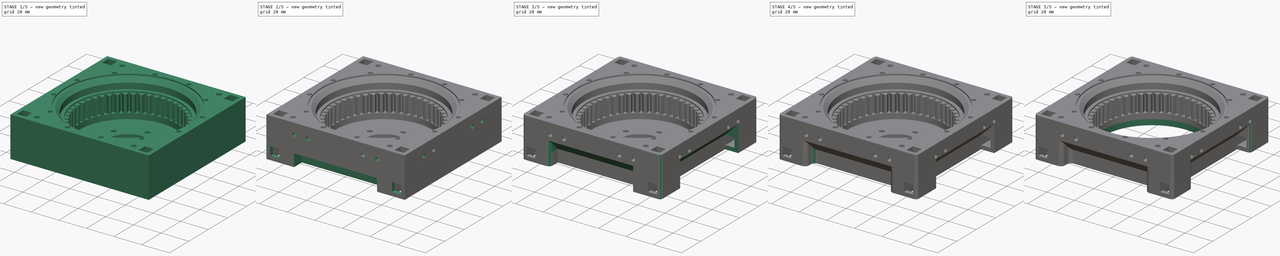
[diagram: build sequence overview — one tinted view per stage of 5, left to right]
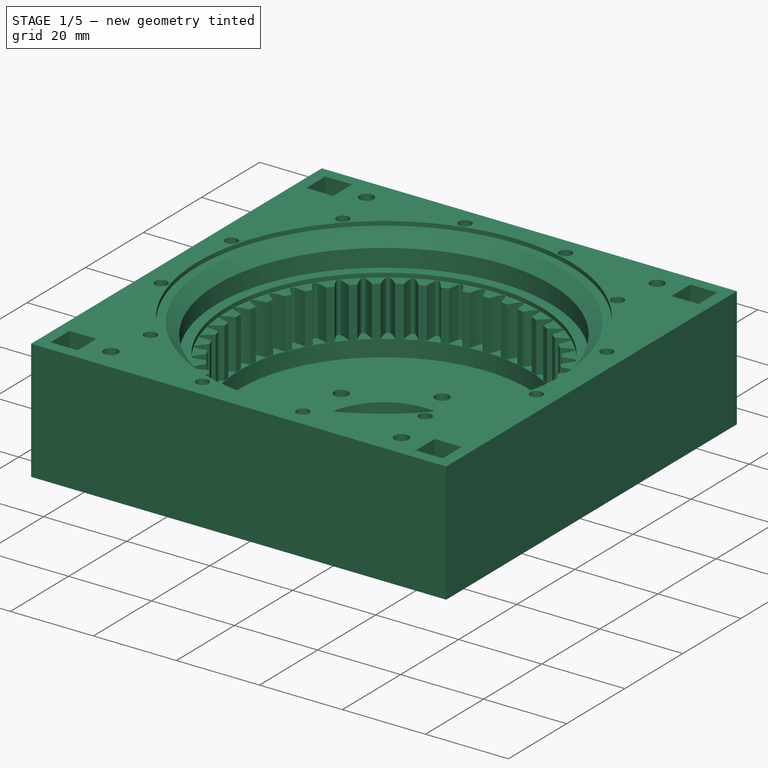
[diagram: stage 1 of 5 — iso view after this stage's code; geometry added in this stage tinted green]
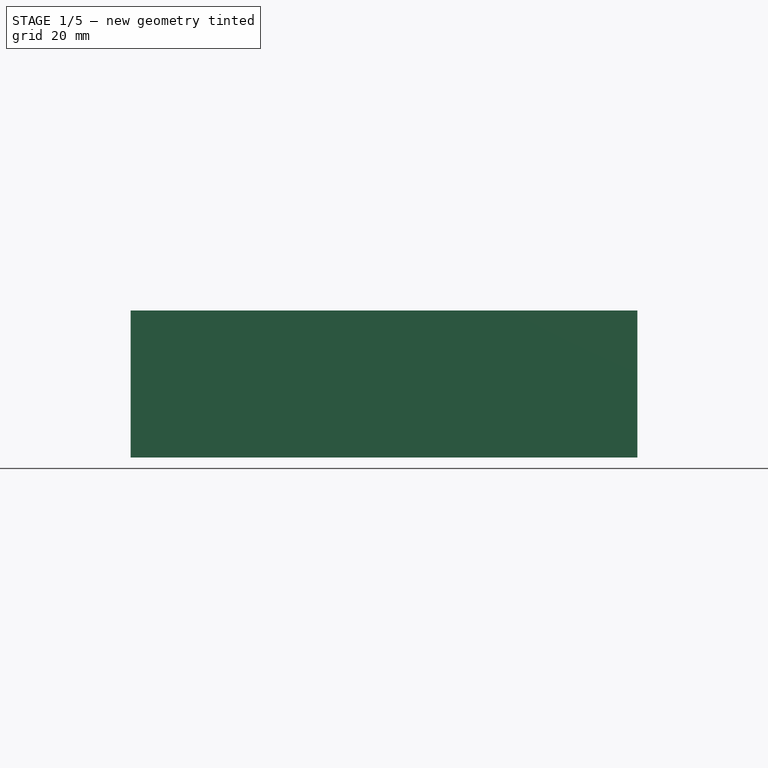
[diagram: stage 1 of 5 — front view after this stage's code; geometry added in this stage tinted green]
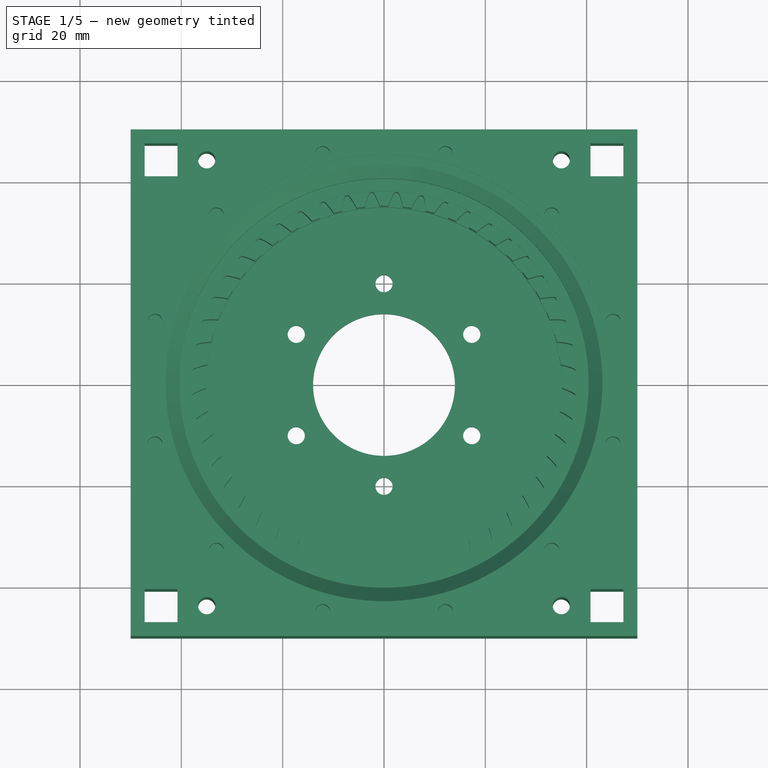
[diagram: stage 1 of 5 — top view after this stage's code; geometry added in this stage tinted green]
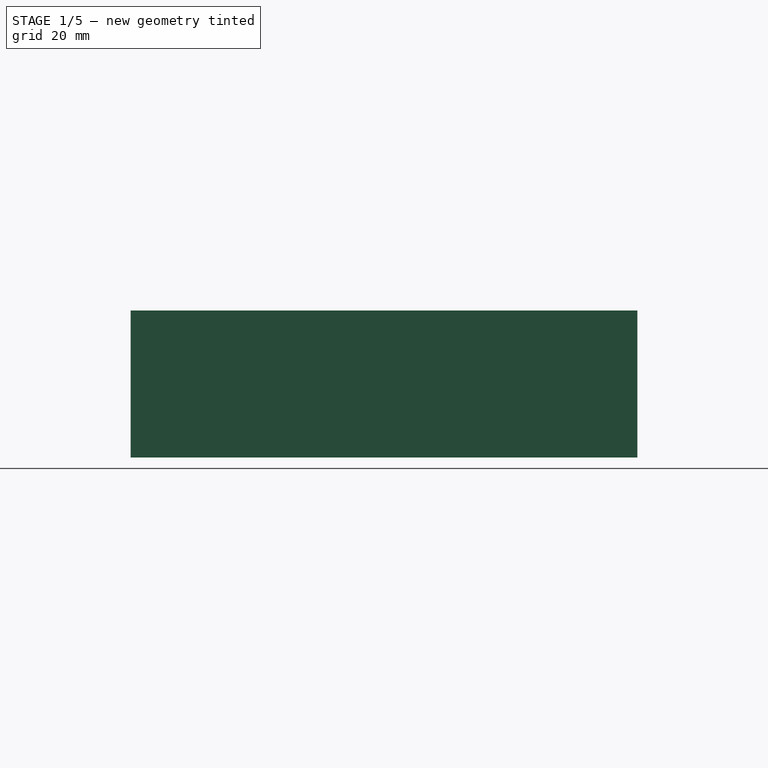
[diagram: stage 1 of 5 — right view after this stage's code; geometry added in this stage tinted green]
FCSTD DOCUMENT  (FreeCAD 0.16R6706 (Git))
Label: RingFixedV1_5
License: All rights reserved
LicenseURL: http://en.wikipedia.org/wiki/All_rights_reserved
objects: PartDesign::Fillet×16, Sketcher::SketchObject×15, PartDesign::Pocket×13, PartDesign::Chamfer×10, PartDesign::Pad×2, PartDesign::PolarPattern×2, PartDesign::Revolution×1, Part::Part2DObjectPython×1, Part::Cut×1, Part::Fuse×1
note: 78 computed .brp shape members not serialized (recipe doc carries the construction recipe); baked Part::Feature solids carry a one-line shape summary decoded from their .brp

FEATURE [Sketcher::SketchObject] Sketch013
  Placement = pos=(0,0,0) rot=(1,0,0;1.5708rad)
  sketch-geometry (25):
    g0: LineSegment StartX=14 StartY=0 StartZ=0 EndX=14 EndY=4 EndZ=0
    g1: LineSegment StartX=14 StartY=0 StartZ=0 EndX=45 EndY=0 EndZ=0
    g2: LineSegment StartX=14 StartY=4 StartZ=0 EndX=35 EndY=4 EndZ=0
    g3: LineSegment StartX=35 StartY=4 StartZ=0 EndX=35 EndY=20 EndZ=0
    g4: LineSegment StartX=45 StartY=0 StartZ=0 EndX=45 EndY=5.26261 EndZ=0
    g5: LineSegment StartX=35 StartY=20 StartZ=0 EndX=38 EndY=20 EndZ=0
    g6: LineSegment StartX=38 StartY=20 StartZ=0 EndX=38 EndY=21 EndZ=0
    g7: LineSegment StartX=38 StartY=21 StartZ=0 EndX=40.4 EndY=21 EndZ=0
    g8: LineSegment StartX=45 StartY=5.26261 StartZ=0 EndX=50 EndY=19 EndZ=0
    g9: LineSegment StartX=40.4 StartY=21 StartZ=0 EndX=40.4 EndY=25.2988 EndZ=0
    g10: LineSegment StartX=40.4 StartY=25.2988 StartZ=0 EndX=43.1012 EndY=28 EndZ=0
    g11: LineSegment StartX=45 StartY=29 StartZ=0 EndX=50 EndY=29 EndZ=0
    g12: LineSegment StartX=50 StartY=29 StartZ=0 EndX=50 EndY=19 EndZ=0
    g13: LineSegment StartX=43.1012 StartY=28 StartZ=0 EndX=45 EndY=28 EndZ=0
    g14: LineSegment StartX=45 StartY=28 StartZ=0 EndX=45 EndY=29 EndZ=0
    g15: Circle [constr] CenterX=40 CenterY=29 CenterZ=0 NormalX=0 NormalY=0 NormalZ=1 Radius=2.9
    g16: LineSegment [constr] StartX=40 StartY=29 StartZ=0 EndX=45 EndY=29 EndZ=0
    g17: Circle CenterX=44.1719 CenterY=24.8281 CenterZ=0 NormalX=0 NormalY=0 NormalZ=1 Radius=0.2
    g18: LineSegment [constr] StartX=42.0506 StartY=26.9494 StartZ=0 EndX=44.1719 EndY=24.8281 EndZ=0
    g19: Circle CenterX=39.5 CenterY=18 CenterZ=0 NormalX=0 NormalY=0 NormalZ=1 Radius=0.15
    g20: Circle CenterX=39.5 CenterY=16 CenterZ=0 NormalX=0 NormalY=0 NormalZ=1 Radius=0.15
    g21: Circle CenterX=39.5 CenterY=14 CenterZ=0 NormalX=0 NormalY=0 NormalZ=1 Radius=0.15
    g22: LineSegment [constr] StartX=39.5 StartY=21 StartZ=0 EndX=39.5 EndY=0 EndZ=0
    g23: Circle CenterX=39.5 CenterY=12 CenterZ=0 NormalX=0 NormalY=0 NormalZ=1 Radius=0.15
    g24: Circle CenterX=39.5 CenterY=10 CenterZ=0 NormalX=0 NormalY=0 NormalZ=1 Radius=0.15
  constraints (78):
    c: PointOnObject(g0,g-1)
    c: Vertical(g0)
    c: DistanceX(g-1,g0) = 14
    c: Coincident(g1,g0)
    c: Horizontal(g1)
    c: DistanceX(g-1,g1) = 45
    c: DistanceY(g0,g0) = -4
    c: Horizontal(g2)
    c: Coincident(g3,g2)
    c: Vertical(g3)
    c: Coincident(g2,g0)
    c: Coincident(g4,g1)
    c: Vertical(g4)
    c: Coincident(g5,g3)
    c: Horizontal(g5)
    c: Coincident(g6,g5)
    c: Vertical(g6)
    c: Coincident(g7,g6)
    c: Horizontal(g7)
    c: Coincident(g8,g4)
    c: Angle(g4,g8) = 2.79253
    c: DistanceX(g-1,g2) = 35
    c: DistanceY(g6,g2) = -17
    c: DistanceY(g5,g6) = 1
    c: DistanceX(g-1,g8) = 50
    c: DistanceX(g-1,g5) = 38
    c: Coincident(g7,g9)
    c: Vertical(g9)
    c: Coincident(g9,g10)
    c: Horizontal(g11)
    c: Coincident(g12,g11)
    c: Coincident(g12,g8)
    c: Vertical(g12)
    c: Coincident(g10,g13)
    c: Coincident(g13,g14)
    c: Coincident(g11,g14)
    c: Vertical(g14)
    c: Horizontal(g13)
    c: Radius(g15) = 2.9
    c: Tangent(g10,g15)
    c: Coincident(g16,g15)
    c: Horizontal(g16)
    c: Angle(g10,g16) = 2.35619
    c: DistanceX(g15,g9) = 0.4
    c: DistanceY(g10,g15) = 1
    c: Coincident(g11,g16)
    c: DistanceX(g-1,g13) = 45
    c: DistanceX(g-1,g15) = 40
    c: DistanceY(g6,g15) = 8
    c: DistanceY(g8,g11) = 10
    c: DistanceX(g11,g11) = 5
    c: DistanceX(g10,g13) = 1.89878
    c: DistanceY(g1,g11) = 29
    c: Radius(g17) = 0.2
    c: PointOnObject(g18,g15)
    c: PointOnObject(g18,g10)
    c: Angle(g10,g18) = 1.5708
    c: Coincident(g17,g18)
    c: Distance(g18,g17) = 3
    c: Vertical(g22)
    c: PointOnObject(g19,g22)
    c: PointOnObject(g20,g22)
    c: PointOnObject(g21,g22)
    c: Radius(g19) = 0.15
    c: Equal(g19,g20)
    c: Equal(g19,g21)
    c: PointOnObject(g22,g1)
    c: DistanceY(g19,g5) = 2
    c: DistanceY(g20,g19) = 2
    c: DistanceY(g21,g20) = 2
    c: PointOnObject(g22,g7)
    c: DistanceX(g5,g22) = 1.5
    c: PointOnObject(g23,g22)
    c: PointOnObject(g24,g22)
    c: Radius(g23) = 0.15
    c: Radius(g24) = 0.15
    c: DistanceY(g23,g21) = 2
    c: DistanceY(g24,g23) = 2
FEATURE [PartDesign::Revolution] Revolution
  Angle = 360
  Axis = (0,0,1)
  Base = (0,0,0)
  Placement = pos=(0,0,0) rot=(1,0,0;1.5708rad)
  ReferenceAxis = -> Sketch013 [V_Axis]
  Reversed = true
  Sketch = -> Sketch013
FEATURE [Part::Part2DObjectPython] InvoluteGear003  # Draft 2D object (typed FeaturePython)
  ExternalGear = true
  HighPrecision = true
  Modules = 1.5
  NumberOfTeeth = 18
  PressureAngle = 20
FEATURE [PartDesign::Pad] Pad007
  Length = 15
  Length2 = 10
  Placement = pos=(0,0,8) rot=(0,0,1;0rad)
  Sketch = -> InvoluteGear003
  Type = 0
FEATURE [Part::Cut] Cut
  Base = -> Revolution
  Tool = -> Pad007
FEATURE [Sketcher::SketchObject] Sketch014
  Placement = pos=(0,0,0) rot=(1,0,0;3.14159rad)
  Support = -> Cut [Face2]
  sketch-geometry (2):
    g0: Circle CenterX=0 CenterY=-20 CenterZ=0 NormalX=0 NormalY=0 NormalZ=1 Radius=1.7
    g1: Circle [constr] CenterX=0 CenterY=0 CenterZ=0 NormalX=0 NormalY=0 NormalZ=1 Radius=20
  constraints (5):
    c: Radius(g0) = 1.7
    c: Radius(g1) = 20
    c: Coincident(g1,g-1)
    c: PointOnObject(g0,g1)
    c: PointOnObject(g0,g-2)
FEATURE [PartDesign::Pocket] Pocket008
  Length = 5
  Sketch = -> Sketch014
  Type = 1
FEATURE [Sketcher::SketchObject] Sketch022  label="HorizontalMountPlane"
  sketch-geometry (48):
    g0: LineSegment StartX=-50 StartY=50 StartZ=0 EndX=50 EndY=50 EndZ=0
    g1: LineSegment StartX=50 StartY=50 StartZ=0 EndX=50 EndY=-50 EndZ=0
    g2: LineSegment StartX=50 StartY=-50 StartZ=0 EndX=-50 EndY=-50 EndZ=0
    g3: LineSegment StartX=-50 StartY=-50 StartZ=0 EndX=-50 EndY=50 EndZ=0
    g4: Circle CenterX=0 CenterY=0 CenterZ=0 NormalX=0 NormalY=0 NormalZ=1 Radius=44
    g5: LineSegment [constr] StartX=-44 StartY=44 StartZ=0 EndX=44 EndY=44 EndZ=0
    g6: LineSegment [constr] StartX=44 StartY=44 StartZ=0 EndX=44 EndY=-44 EndZ=0
    g7: LineSegment [constr] StartX=44 StartY=-44 StartZ=0 EndX=-44 EndY=-44 EndZ=0
    g8: LineSegment [constr] StartX=-44 StartY=-44 StartZ=0 EndX=-44 EndY=44 EndZ=0
    g9: LineSegment StartX=-47.25 StartY=47.25 StartZ=0 EndX=-40.75 EndY=47.25 EndZ=0
    g10: LineSegment StartX=-40.75 StartY=47.25 StartZ=0 EndX=-40.75 EndY=40.75 EndZ=0
    g11: LineSegment StartX=-40.75 StartY=40.75 StartZ=0 EndX=-47.25 EndY=40.75 EndZ=0
    g12: LineSegment StartX=-47.25 StartY=40.75 StartZ=0 EndX=-47.25 EndY=47.25 EndZ=0
    g13: LineSegment StartX=40.75 StartY=47.25 StartZ=0 EndX=47.25 EndY=47.25 EndZ=0
    g14: LineSegment StartX=47.25 StartY=47.25 StartZ=0 EndX=47.25 EndY=40.75 EndZ=0
    g15: LineSegment StartX=47.25 StartY=40.75 StartZ=0 EndX=40.75 EndY=40.75 EndZ=0
    g16: LineSegment StartX=40.75 StartY=40.75 StartZ=0 EndX=40.75 EndY=47.25 EndZ=0
    g17: LineSegment StartX=-47.25 StartY=-40.75 StartZ=0 EndX=-40.75 EndY=-40.75 EndZ=0
    g18: LineSegment StartX=-40.75 StartY=-40.75 StartZ=0 EndX=-40.75 EndY=-47.25 EndZ=0
    g19: LineSegment StartX=-40.75 StartY=-47.25 StartZ=0 EndX=-47.25 EndY=-47.25 EndZ=0
    g20: LineSegment StartX=-47.25 StartY=-47.25 StartZ=0 EndX=-47.25 EndY=-40.75 EndZ=0
    g21: LineSegment StartX=40.75 StartY=-40.75 StartZ=0 EndX=47.25 EndY=-40.75 EndZ=0
    g22: LineSegment StartX=47.25 StartY=-40.75 StartZ=0 EndX=47.25 EndY=-47.25 EndZ=0
    g23: LineSegment StartX=47.25 StartY=-47.25 StartZ=0 EndX=40.75 EndY=-47.25 EndZ=0
    g24: LineSegment StartX=40.75 StartY=-47.25 StartZ=0 EndX=40.75 EndY=-40.75 EndZ=0
    g25: LineSegment [constr] StartX=-47.25 StartY=40.75 StartZ=0 EndX=-47.25 EndY=-40.75 EndZ=0
    g26: LineSegment [constr] StartX=-40.75 StartY=47.25 StartZ=0 EndX=40.75 EndY=47.25 EndZ=0
    g27: LineSegment [constr] StartX=47.25 StartY=40.75 StartZ=0 EndX=47.25 EndY=-40.75 EndZ=0
    g28: Circle CenterX=-35 CenterY=44 CenterZ=0 NormalX=0 NormalY=0 NormalZ=1 Radius=1.7
    g29: Circle [constr] CenterX=-44 CenterY=35 CenterZ=0 NormalX=0 NormalY=0 NormalZ=1 Radius=1.7
    g30: Circle [constr] CenterX=-44 CenterY=-35 CenterZ=0 NormalX=0 NormalY=0 NormalZ=1 Radius=1.7
    g31: Circle CenterX=-35 CenterY=-44 CenterZ=0 NormalX=0 NormalY=0 NormalZ=1 Radius=1.7
    g32: Circle CenterX=35 CenterY=-44 CenterZ=0 NormalX=0 NormalY=0 NormalZ=1 Radius=1.7
    g33: Circle [constr] CenterX=44 CenterY=-35 CenterZ=0 NormalX=0 NormalY=0 NormalZ=1 Radius=1.7
    g34: Circle [constr] CenterX=44 CenterY=35 CenterZ=0 NormalX=0 NormalY=0 NormalZ=1 Radius=1.7
    g35: Circle CenterX=35 CenterY=44 CenterZ=0 NormalX=0 NormalY=0 NormalZ=1 Radius=1.7
    g36: LineSegment [constr] StartX=-44 StartY=35 StartZ=0 EndX=44 EndY=35 EndZ=0
    g37: LineSegment [constr] StartX=-35 StartY=44 StartZ=0 EndX=-35 EndY=-44 EndZ=0
    g38: LineSegment [constr] StartX=-44 StartY=-35 StartZ=0 EndX=44 EndY=-35 EndZ=0
    g39: LineSegment [constr] StartX=35 StartY=-44 StartZ=0 EndX=35 EndY=44 EndZ=0
    g40: LineSegment [constr] StartX=-36.5 StartY=36.5 StartZ=0 EndX=36.5 EndY=36.5 EndZ=0
    g41: LineSegment [constr] StartX=36.5 StartY=36.5 StartZ=0 EndX=36.5 EndY=-36.5 EndZ=0
    g42: LineSegment [constr] StartX=36.5 StartY=-36.5 StartZ=0 EndX=-36.5 EndY=-36.5 EndZ=0
    g43: LineSegment [constr] StartX=-36.5 StartY=-36.5 StartZ=0 EndX=-36.5 EndY=36.5 EndZ=0
    g44: Circle [constr] CenterX=-36.5 CenterY=36.5 CenterZ=0 NormalX=0 NormalY=0 NormalZ=1 Radius=1.7
    g45: Circle [constr] CenterX=36.5 CenterY=36.5 CenterZ=0 NormalX=0 NormalY=0 NormalZ=1 Radius=1.7
    g46: Circle [constr] CenterX=-36.5 CenterY=-36.5 CenterZ=0 NormalX=0 NormalY=0 NormalZ=1 Radius=1.7
    g47: Circle [constr] CenterX=36.5 CenterY=-36.5 CenterZ=0 NormalX=0 NormalY=0 NormalZ=1 Radius=1.7
  constraints (122):
    c: Coincident(g0,g1)
    c: Coincident(g1,g2)
    c: Coincident(g2,g3)
    c: Coincident(g3,g0)
    c: Horizontal(g0)
    c: Horizontal(g2)
    c: Vertical(g1)
    c: Vertical(g3)
    c: Symmetric(g2,g0,g-1)
    c: Coincident(g4,g-1)
    c: Radius(g4) = 44
    c: Equal(g0,g3)
    c: DistanceY(g2,g0) = 100
    c: Coincident(g5,g6)
    c: Coincident(g6,g7)
    c: Coincident(g7,g8)
    c: Coincident(g8,g5)
    c: Horizontal(g5)
    c: Horizontal(g7)
    c: Vertical(g6)
    c: Vertical(g8)
    c: Coincident(g9,g10)
    c: Coincident(g10,g11)
    c: Coincident(g11,g12)
    c: Coincident(g12,g9)
    c: Horizontal(g9)
    c: Horizontal(g11)
    c: Vertical(g10)
    c: Vertical(g12)
    c: Symmetric(g11,g9,g5)
    c: Equal(g12,g9)
    c: DistanceY(g11,g9) = 6.5
    c: Coincident(g13,g14)
    c: Coincident(g14,g15)
    c: Coincident(g15,g16)
    c: Coincident(g16,g13)
    c: Horizontal(g13)
    c: Horizontal(g15)
    c: Vertical(g14)
    c: Vertical(g16)
    c: Symmetric(g15,g13,g5)
    c: Equal(g14,g13)
    c: Coincident(g17,g18)
    c: Coincident(g18,g19)
    c: Coincident(g19,g20)
    c: Coincident(g20,g17)
    c: Horizontal(g17)
    c: Horizontal(g19)
    c: Vertical(g18)
    c: Vertical(g20)
    c: Coincident(g21,g22)
    c: Coincident(g22,g23)
    c: Coincident(g23,g24)
    c: Coincident(g24,g21)
    c: Horizontal(g21)
    c: Horizontal(g23)
    c: Vertical(g22)
    c: Vertical(g24)
    c: Symmetric(g21,g23,g6)
    c: Symmetric(g17,g18,g7)
    c: Equal(g17,g18)
    c: Equal(g21,g24)
    c: Coincident(g25,g11)
    c: Coincident(g25,g17)
    c: Vertical(g25)
    c: Coincident(g26,g9)
    c: Coincident(g26,g13)
    c: Horizontal(g26)
    c: Coincident(g27,g14)
    c: Coincident(g27,g21)
    c: Vertical(g27)
    c: Equal(g5,g8)
    c: DistanceY(g6,g5) = 88
    c: Symmetric(g10,g21,g-1)
    c: PointOnObject(g28,g5)
    c: PointOnObject(g29,g8)
    c: PointOnObject(g30,g8)
    c: PointOnObject(g31,g7)
    c: PointOnObject(g32,g7)
    c: PointOnObject(g33,g6)
    c: PointOnObject(g34,g6)
    c: PointOnObject(g35,g5)
    c: Radius(g30) = 1.7
    c: Equal(g30, g31-g35) x5
    c: Equal(g30,g28)
    c: Equal(g30,g29)
    c: DistanceY(g29,g5) = 9
    c: DistanceX(g5,g28) = 9
    c: Coincident(g36,g29)
    c: Coincident(g36,g34)
    c: Horizontal(g36)
    c: Coincident(g37,g28)
    c: Vertical(g37)
    c: Coincident(g31,g37)
    c: Coincident(g38,g30)
    c: Coincident(g38,g33)
    c: Horizontal(g38)
    c: Coincident(g39,g32)
    c: Coincident(g39,g35)
    c: Vertical(g39)
    c: Symmetric(g35,g28,g-2)
    c: Symmetric(g29,g30,g-1)
    c: Coincident(g40,g41)
    c: Coincident(g41,g42)
    c: Coincident(g42,g43)
    c: Coincident(g43,g40)
    c: Horizontal(g40)
    c: Horizontal(g42)
    c: Vertical(g41)
    c: Vertical(g43)
    c: Equal(g41,g40)
    c: Symmetric(g40,g42,g-1)
    c: Coincident(g44,g40)
    c: Coincident(g45,g40)
    c: Coincident(g47,g41)
    c: Radius(g44) = 1.7
    c: Equal(g44,g45)
    c: Equal(g44,g47)
    c: Equal(g44,g46)
    c: DistanceX(g40,g40) = 73
    c: Coincident(g46,g42)
    c: DistanceX(g31,g32) = 70
FEATURE [PartDesign::Pad] Pad012
  Length = 29
  Length2 = 100
  Sketch = -> Sketch022
  Type = 0
FEATURE [Sketcher::SketchObject] Sketch023
  Placement = pos=(0,0,29) rot=(0,0,1;0rad)
  Support = -> Pad012 [Face27]
  sketch-geometry (1):
    g0: Circle CenterX=0 CenterY=0 CenterZ=0 NormalX=0 NormalY=0 NormalZ=1 Radius=49
  constraints (2):
    c: Coincident(g0,g-1)
    c: Radius(g0) = 49
FEATURE [PartDesign::Pocket] Pocket014
  Length = 10
  Sketch = -> Sketch023
  Type = 0
FEATURE [PartDesign::PolarPattern] PolarPattern
  Angle = 360
  Axis = -> Sketch014 [N_Axis]
  Occurrences = 6
  Originals = -> [Pocket008]
FEATURE [Sketcher::SketchObject] Sketch  label="BearingScrewHoles"
  Placement = pos=(0,0,29) rot=(0,0,1;0rad)
  Support = -> PolarPattern [Face399]
  sketch-geometry (2):
    g0: Circle CenterX=45.2053 CenterY=12.1127 CenterZ=0 NormalX=0 NormalY=0 NormalZ=1 Radius=1.5
    g1: LineSegment [constr] StartX=0 StartY=0 StartZ=0 EndX=45.2053 EndY=12.1127 EndZ=0
  constraints (5):
    c: Radius(g0) = 1.5
    c: Coincident(g1,g-1)
    c: Coincident(g1,g0)
    c: Distance(g-1,g0) = 46.8
    c: Angle(g-1,g1) = 0.261799
FEATURE [PartDesign::Pocket] Pocket
  Length = 12
  Sketch = -> Sketch
  Type = 0
FEATURE [PartDesign::PolarPattern] PolarPattern001
  Angle = 360
  Axis = -> Sketch [N_Axis]
  Occurrences = 12
  Originals = -> [Pocket]
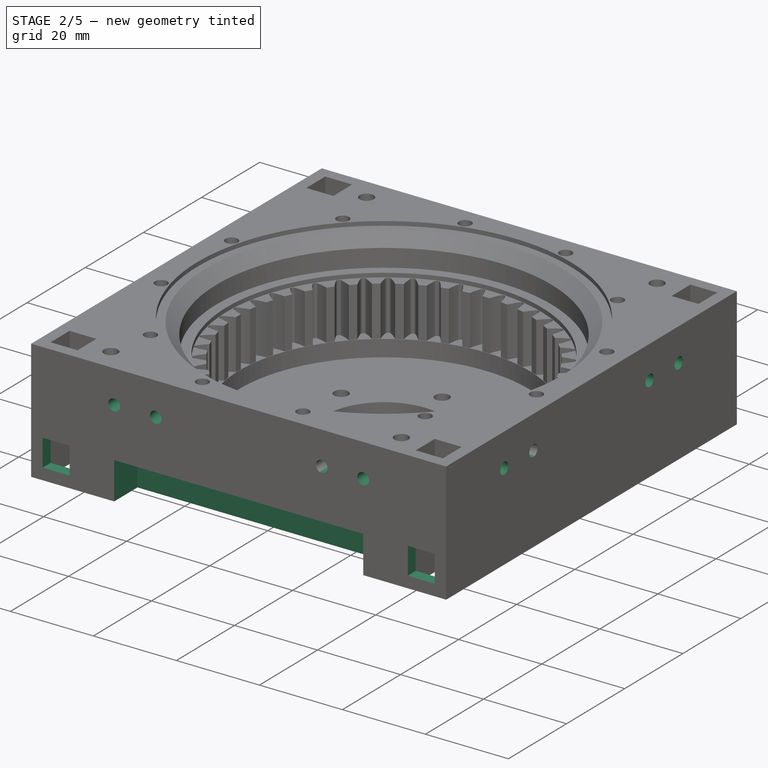
[diagram: stage 2 of 5 — iso view after this stage's code; geometry added in this stage tinted green]
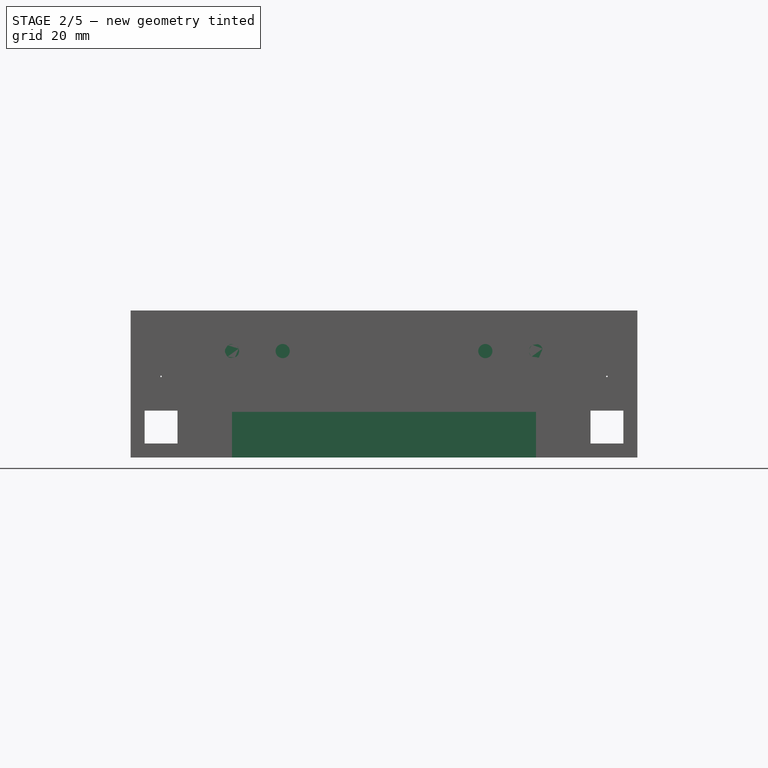
[diagram: stage 2 of 5 — front view after this stage's code; geometry added in this stage tinted green]
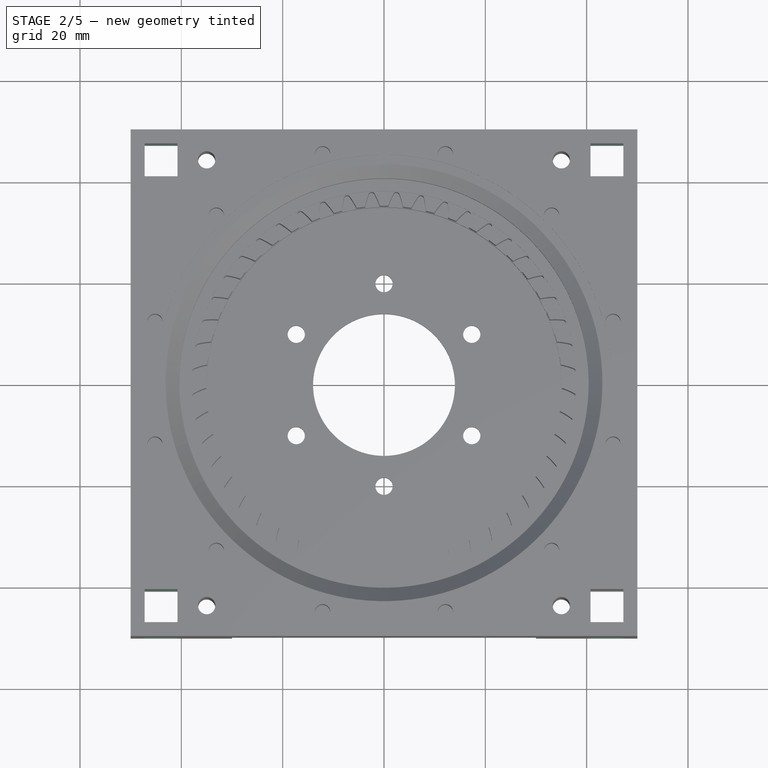
[diagram: stage 2 of 5 — top view after this stage's code; geometry added in this stage tinted green]
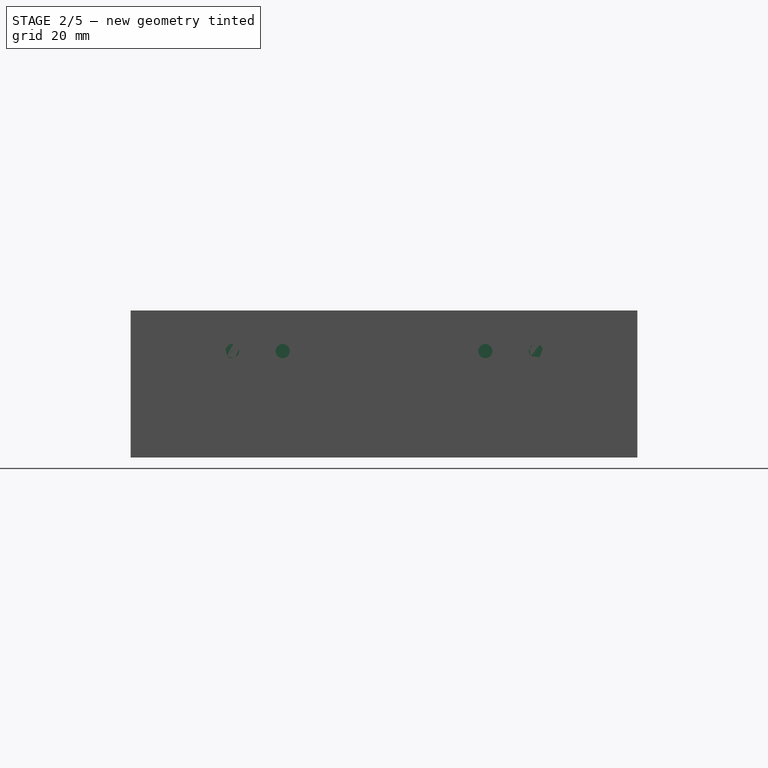
[diagram: stage 2 of 5 — right view after this stage's code; geometry added in this stage tinted green]
FEATURE [Part::Fuse] Fusion001
  Base = -> Pocket014
  Tool = -> PolarPattern001
FEATURE [Sketcher::SketchObject] Sketch024  label="VerticalMountPlane"
  Placement = pos=(0,-50,0) rot=(1,0,0;1.5708rad)
  Support = -> Fusion001 [Face4]
  sketch-geometry (13):
    g0: LineSegment StartX=-47.25 StartY=9.25 StartZ=0 EndX=-40.75 EndY=9.25 EndZ=0
    g1: LineSegment StartX=-40.75 StartY=9.25 StartZ=0 EndX=-40.75 EndY=2.75 EndZ=0
    g2: LineSegment StartX=-40.75 StartY=2.75 StartZ=0 EndX=-47.25 EndY=2.75 EndZ=0
    g3: LineSegment StartX=-47.25 StartY=2.75 StartZ=0 EndX=-47.25 EndY=9.25 EndZ=0
    g4: LineSegment StartX=40.75 StartY=9.25 StartZ=0 EndX=47.25 EndY=9.25 EndZ=0
    g5: LineSegment StartX=47.25 StartY=9.25 StartZ=0 EndX=47.25 EndY=2.75 EndZ=0
    g6: LineSegment StartX=47.25 StartY=2.75 StartZ=0 EndX=40.75 EndY=2.75 EndZ=0
    g7: LineSegment StartX=40.75 StartY=2.75 StartZ=0 EndX=40.75 EndY=9.25 EndZ=0
    g8: GeomPoint [constr] X=-44 Y=6 Z=0
    g9: GeomPoint [constr] X=44 Y=6 Z=0
    g10: Circle CenterX=-44 CenterY=16 CenterZ=0 NormalX=0 NormalY=0 NormalZ=1 Radius=0.15
    g11: Circle CenterX=44 CenterY=16 CenterZ=0 NormalX=0 NormalY=0 NormalZ=1 Radius=0.15
    g12: LineSegment [constr] StartX=-44 StartY=6 StartZ=0 EndX=-44 EndY=16 EndZ=0
  constraints (31):
    c: Coincident(g0,g1)
    c: Coincident(g1,g2)
    c: Coincident(g2,g3)
    c: Coincident(g3,g0)
    c: Horizontal(g0)
    c: Horizontal(g2)
    c: Vertical(g1)
    c: Vertical(g3)
    c: Coincident(g4,g5)
    c: Coincident(g5,g6)
    c: Coincident(g6,g7)
    c: Coincident(g7,g4)
    c: Horizontal(g4)
    c: Horizontal(g6)
    c: Vertical(g5)
    c: Vertical(g7)
    c: Symmetric(g1,g6,g-2)
    c: Symmetric(g0,g4,g-2)
    c: Equal(g1,g2)
    c: DistanceX(g2,g1) = 6.5
    c: Symmetric(g2,g0,g8)
    c: Symmetric(g4,g6,g9)
    c: DistanceX(g8,g9) = 88
    c: DistanceY(g-1,g8) = 6
    c: Coincident(g12,g8)
    c: Coincident(g12,g10)
    c: Vertical(g12)
    c: Radius(g10) = 0.15
    c: DistanceY(g8,g10) = 10
    c: Symmetric(g10,g11,g-2)
    c: Equal(g11,g10)
FEATURE [PartDesign::Pocket] Pocket015  label="MainBlock"
  Length = 5
  Sketch = -> Sketch024
  Type = 1
FEATURE [Sketcher::SketchObject] Sketch025  label="SideScrewHoles"
  Placement = pos=(0,50,0) rot=(0,0.707107,0.707107;3.14159rad)
  Support = -> Pocket015 [Face1]
  sketch-geometry (5):
    g0: Circle CenterX=30 CenterY=21 CenterZ=0 NormalX=0 NormalY=0 NormalZ=1 Radius=1.4
    g1: Circle CenterX=-30 CenterY=21 CenterZ=0 NormalX=0 NormalY=0 NormalZ=1 Radius=1.4
    g2: LineSegment [constr] StartX=-30 StartY=21 StartZ=0 EndX=30 EndY=21 EndZ=0
    g3: Circle CenterX=-20 CenterY=21 CenterZ=0 NormalX=0 NormalY=0 NormalZ=1 Radius=1.4
    g4: Circle CenterX=20 CenterY=21 CenterZ=0 NormalX=0 NormalY=0 NormalZ=1 Radius=1.4
  constraints (13):
    c: Coincident(g2,g1)
    c: Coincident(g2,g0)
    c: Radius(g0) = 1.4
    c: Equal(g0,g1)
    c: DistanceX(g1,g0) = 60
    c: DistanceY(g-1,g1) = 21
    c: PointOnObject(g3,g2)
    c: Radius(g3) = 1.4
    c: PointOnObject(g4,g2)
    c: Radius(g4) = 1.4
    c: Symmetric(g1,g0,g-2)
    c: Symmetric(g3,g4,g-2)
    c: DistanceX(g3,g4) = 40
FEATURE [PartDesign::Pocket] Pocket016
  Length = 11
  Sketch = -> Sketch025
  Type = 0
FEATURE [Sketcher::SketchObject] Sketch026
  Placement = pos=(0,-50,0) rot=(1,0,0;1.5708rad)
  Support = -> Pocket016 [Face20]
  sketch-geometry (4):
    g0: LineSegment StartX=-30 StartY=9 StartZ=0 EndX=30 EndY=9 EndZ=0
    g1: LineSegment StartX=30 StartY=9 StartZ=0 EndX=30 EndY=0 EndZ=0
    g2: LineSegment StartX=30 StartY=0 StartZ=0 EndX=-30 EndY=0 EndZ=0
    g3: LineSegment StartX=-30 StartY=0 StartZ=0 EndX=-30 EndY=9 EndZ=0
  constraints (12):
    c: Coincident(g0,g1)
    c: Coincident(g1,g2)
    c: Coincident(g2,g3)
    c: Coincident(g3,g0)
    c: Horizontal(g0)
    c: Horizontal(g2)
    c: Vertical(g1)
    c: Vertical(g3)
    c: Symmetric(g1,g2,g-2)
    c: DistanceY(g-1,g2) = 0
    c: DistanceY(g2,g0) = 9
    c: DistanceX(g0,g0) = 60
FEATURE [PartDesign::Pocket] Pocket017
  Length = 8
  Sketch = -> Sketch026
  Type = 0
FEATURE [Sketcher::SketchObject] Sketch027  label="SideScrewHoles001"
  Placement = pos=(0,-50,0) rot=(1,0,0;1.5708rad)
  Support = -> Pocket017 [Face20]
  sketch-geometry (5):
    g0: Circle CenterX=30 CenterY=21 CenterZ=0 NormalX=0 NormalY=0 NormalZ=1 Radius=1.4
    g1: Circle CenterX=-30 CenterY=21 CenterZ=0 NormalX=0 NormalY=0 NormalZ=1 Radius=1.4
    g2: LineSegment [constr] StartX=-30 StartY=21 StartZ=0 EndX=30 EndY=21 EndZ=0
    g3: Circle CenterX=-20 CenterY=21 CenterZ=0 NormalX=0 NormalY=0 NormalZ=1 Radius=1.4
    g4: Circle CenterX=20 CenterY=21 CenterZ=0 NormalX=0 NormalY=0 NormalZ=1 Radius=1.4
  constraints (13):
    c: Coincident(g2,g1)
    c: Coincident(g2,g0)
    c: Radius(g0) = 1.4
    c: Equal(g0,g1)
    c: DistanceX(g1,g0) = 60
    c: DistanceY(g-1,g1) = 21
    c: PointOnObject(g3,g2)
    c: Radius(g3) = 1.4
    c: PointOnObject(g4,g2)
    c: Radius(g4) = 1.4
    c: Symmetric(g1,g0,g-2)
    c: Symmetric(g3,g4,g-2)
    c: DistanceX(g3,g4) = 40
FEATURE [PartDesign::Pocket] Pocket018
  Length = 11
  Sketch = -> Sketch027
  Type = 0
FEATURE [Sketcher::SketchObject] Sketch028  label="Recess001"
  Placement = pos=(0,50,0) rot=(0,0.707107,0.707107;3.14159rad)
  Support = -> Pocket018 [Face1]
  sketch-geometry (4):
    g0: LineSegment StartX=-30 StartY=9 StartZ=0 EndX=30 EndY=9 EndZ=0
    g1: LineSegment StartX=30 StartY=9 StartZ=0 EndX=30 EndY=0 EndZ=0
    g2: LineSegment StartX=30 StartY=0 StartZ=0 EndX=-30 EndY=0 EndZ=0
    g3: LineSegment StartX=-30 StartY=0 StartZ=0 EndX=-30 EndY=9 EndZ=0
  constraints (12):
    c: Coincident(g0,g1)
    c: Coincident(g1,g2)
    c: Coincident(g2,g3)
    c: Coincident(g3,g0)
    c: Horizontal(g0)
    c: Horizontal(g2)
    c: Vertical(g1)
    c: Vertical(g3)
    c: Symmetric(g1,g2,g-2)
    c: DistanceY(g-1,g2) = 0
    c: DistanceY(g2,g0) = 9
    c: DistanceX(g0,g0) = 60
FEATURE [PartDesign::Pocket] Pocket019  label="AnotherBrickInTheWall"
  Length = 8
  Sketch = -> Sketch028
  Type = 0
FEATURE [Sketcher::SketchObject] Sketch029  label="SideScrewHoles002"
  Placement = pos=(50,0,0) rot=(0.57735,0.57735,0.57735;2.0944rad)
  Support = -> Pocket019 [Face6]
  sketch-geometry (5):
    g0: Circle CenterX=30 CenterY=21 CenterZ=0 NormalX=0 NormalY=0 NormalZ=1 Radius=1.4
    g1: Circle CenterX=-30 CenterY=21 CenterZ=0 NormalX=0 NormalY=0 NormalZ=1 Radius=1.4
    g2: LineSegment [constr] StartX=-30 StartY=21 StartZ=0 EndX=30 EndY=21 EndZ=0
    g3: Circle CenterX=-20 CenterY=21 CenterZ=0 NormalX=0 NormalY=0 NormalZ=1 Radius=1.4
    g4: Circle CenterX=20 CenterY=21 CenterZ=0 NormalX=0 NormalY=0 NormalZ=1 Radius=1.4
  constraints (13):
    c: Coincident(g2,g1)
    c: Coincident(g2,g0)
    c: Radius(g0) = 1.4
    c: Equal(g0,g1)
    c: DistanceX(g1,g0) = 60
    c: DistanceY(g-1,g1) = 21
    c: PointOnObject(g3,g2)
    c: Radius(g3) = 1.4
    c: PointOnObject(g4,g2)
    c: Radius(g4) = 1.4
    c: Symmetric(g1,g0,g-2)
    c: Symmetric(g3,g4,g-2)
    c: DistanceX(g3,g4) = 40
FEATURE [PartDesign::Pocket] Pocket020
  Length = 11
  Sketch = -> Sketch029
  Type = 0
FEATURE [Sketcher::SketchObject] Sketch030  label="SideScrewHoles003"
  Placement = pos=(-50,0,0) rot=(0.57735,-0.57735,-0.57735;2.0944rad)
  Support = -> Pocket020 [Face8]
  sketch-geometry (5):
    g0: Circle CenterX=30 CenterY=21 CenterZ=0 NormalX=0 NormalY=0 NormalZ=1 Radius=1.4
    g1: Circle CenterX=-30 CenterY=21 CenterZ=0 NormalX=0 NormalY=0 NormalZ=1 Radius=1.4
    g2: LineSegment [constr] StartX=-30 StartY=21 StartZ=0 EndX=30 EndY=21 EndZ=0
    g3: Circle CenterX=-20 CenterY=21 CenterZ=0 NormalX=0 NormalY=0 NormalZ=1 Radius=1.4
    g4: Circle CenterX=20 CenterY=21 CenterZ=0 NormalX=0 NormalY=0 NormalZ=1 Radius=1.4
  constraints (13):
    c: Coincident(g2,g1)
    c: Coincident(g2,g0)
    c: Radius(g0) = 1.4
    c: Equal(g0,g1)
    c: DistanceX(g1,g0) = 60
    c: DistanceY(g-1,g1) = 21
    c: PointOnObject(g3,g2)
    c: Radius(g3) = 1.4
    c: PointOnObject(g4,g2)
    c: Radius(g4) = 1.4
    c: Symmetric(g1,g0,g-2)
    c: Symmetric(g3,g4,g-2)
    c: DistanceX(g3,g4) = 40
FEATURE [PartDesign::Pocket] Pocket021  label="FinalBeforeChamfer"
  Length = 11
  Sketch = -> Sketch030
  Type = 0
FEATURE [PartDesign::Chamfer] Chamfer
  Base = -> Pocket021 [Edge3]
  Size = 7.9
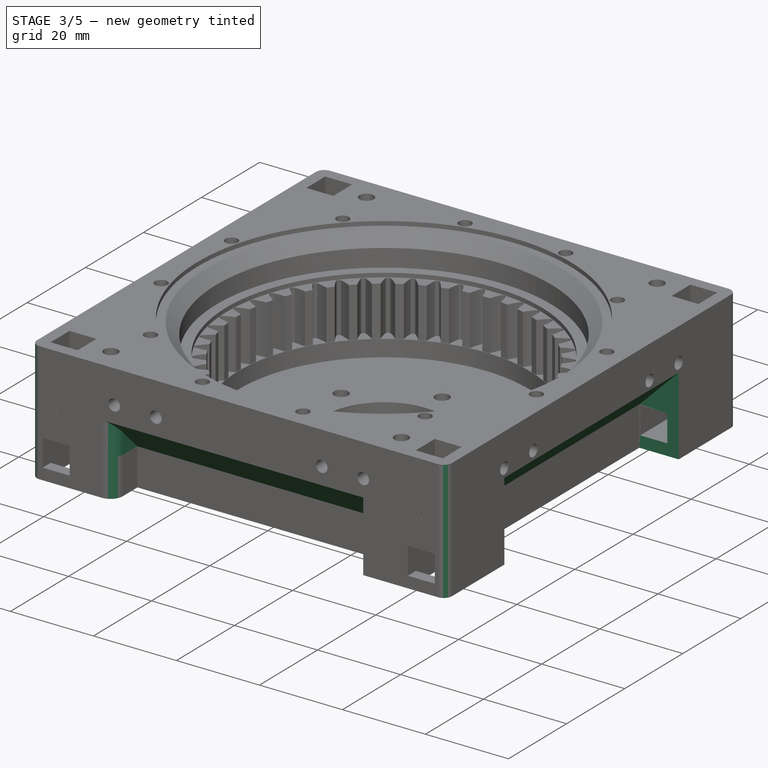
[diagram: stage 3 of 5 — iso view after this stage's code; geometry added in this stage tinted green]
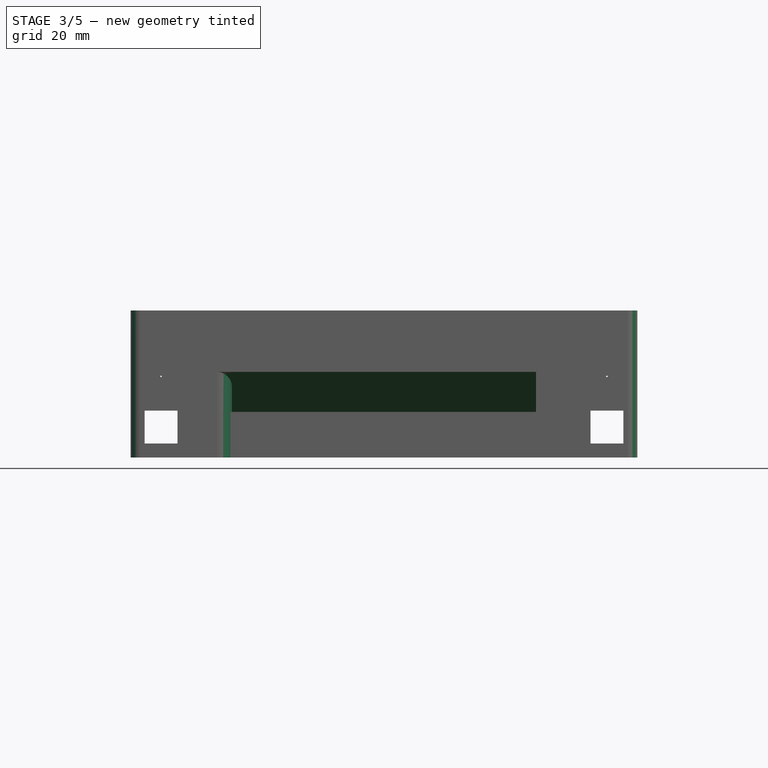
[diagram: stage 3 of 5 — front view after this stage's code; geometry added in this stage tinted green]
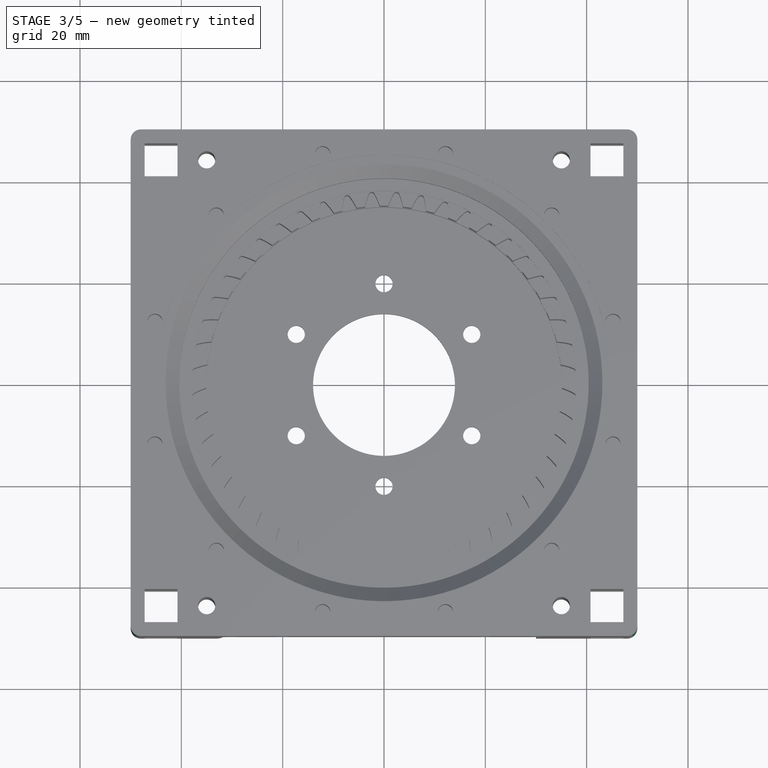
[diagram: stage 3 of 5 — top view after this stage's code; geometry added in this stage tinted green]
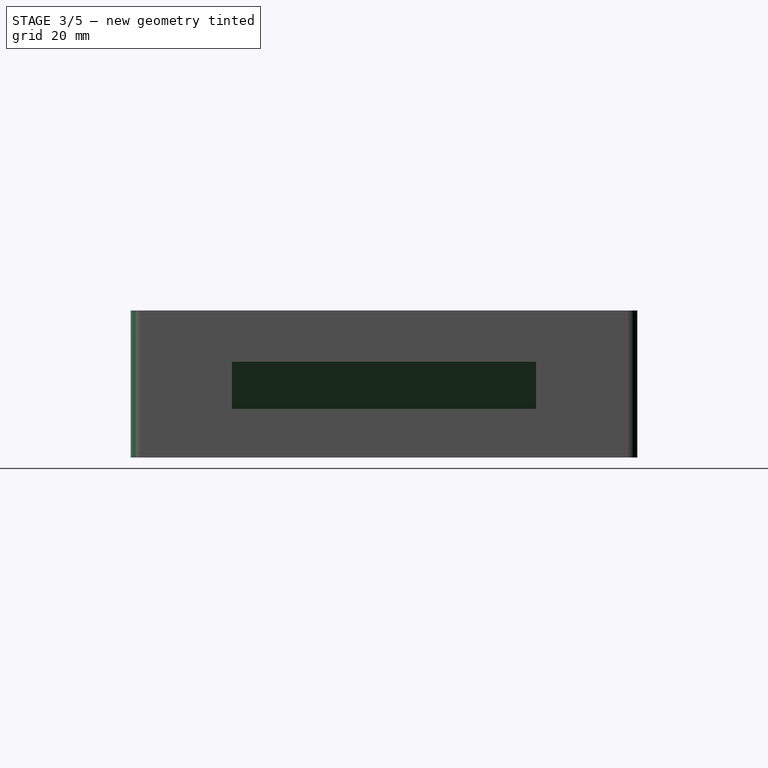
[diagram: stage 3 of 5 — right view after this stage's code; geometry added in this stage tinted green]
FEATURE [PartDesign::Chamfer] Chamfer001
  Base = -> Chamfer [Edge200]
  Size = 7.9
FEATURE [Sketcher::SketchObject] Sketch031  label="Recess"
  Placement = pos=(50,0,0) rot=(0.57735,0.57735,0.57735;2.0944rad)
  Support = -> Chamfer001 [Face8]
  sketch-geometry (4):
    g0: LineSegment StartX=-30 StartY=9.6 StartZ=0 EndX=30 EndY=9.6 EndZ=0
    g1: LineSegment StartX=30 StartY=9.6 StartZ=0 EndX=30 EndY=0 EndZ=0
    g2: LineSegment StartX=30 StartY=0 StartZ=0 EndX=-30 EndY=0 EndZ=0
    g3: LineSegment StartX=-30 StartY=0 StartZ=0 EndX=-30 EndY=9.6 EndZ=0
  constraints (12):
    c: Coincident(g0,g1)
    c: Coincident(g1,g2)
    c: Coincident(g2,g3)
    c: Coincident(g3,g0)
    c: Horizontal(g0)
    c: Horizontal(g2)
    c: Vertical(g1)
    c: Vertical(g3)
    c: Symmetric(g1,g2,g-2)
    c: DistanceY(g-1,g2) = 0
    c: DistanceY(g2,g0) = 9.6
    c: DistanceX(g0,g0) = 60
FEATURE [PartDesign::Pocket] Pocket022
  Length = 9.5
  Sketch = -> Sketch031
  Type = 0
FEATURE [PartDesign::Chamfer] Chamfer002
  Base = -> Pocket022 [Edge121]
  Size = 9.3
FEATURE [Sketcher::SketchObject] Sketch032
  Placement = pos=(-50,0,0) rot=(0.57735,-0.57735,-0.57735;2.0944rad)
  Support = -> Chamfer002 [Face25]
  sketch-geometry (4):
    g0: LineSegment StartX=-30 StartY=9.6 StartZ=0 EndX=30 EndY=9.6 EndZ=0
    g1: LineSegment StartX=30 StartY=9.6 StartZ=0 EndX=30 EndY=0 EndZ=0
    g2: LineSegment StartX=30 StartY=0 StartZ=0 EndX=-30 EndY=0 EndZ=0
    g3: LineSegment StartX=-30 StartY=0 StartZ=0 EndX=-30 EndY=9.6 EndZ=0
  constraints (12):
    c: Coincident(g0,g1)
    c: Coincident(g1,g2)
    c: Coincident(g2,g3)
    c: Coincident(g3,g0)
    c: Horizontal(g0)
    c: Horizontal(g2)
    c: Vertical(g1)
    c: Vertical(g3)
    c: Symmetric(g1,g2,g-2)
    c: DistanceY(g-1,g2) = 0
    c: DistanceY(g2,g0) = 9.6
    c: DistanceX(g0,g0) = 60
FEATURE [PartDesign::Pocket] Pocket023
  Length = 9.5
  Sketch = -> Sketch032
  Type = 0
FEATURE [PartDesign::Chamfer] Chamfer003
  Base = -> Pocket023 [Edge200]
  Size = 9.3
FEATURE [PartDesign::Fillet] Fillet
  Base = -> Chamfer003 [Edge6]
  Radius = 2
FEATURE [PartDesign::Fillet] Fillet001
  Base = -> Fillet [Edge151]
  Radius = 2
FEATURE [PartDesign::Fillet] Fillet002
  Base = -> Fillet001 [Edge84]
  Radius = 2
FEATURE [PartDesign::Fillet] Fillet003
  Base = -> Fillet002 [Edge79]
  Radius = 2
FEATURE [PartDesign::Fillet] Fillet004
  Base = -> Fillet003 [Edge56]
  Radius = 3
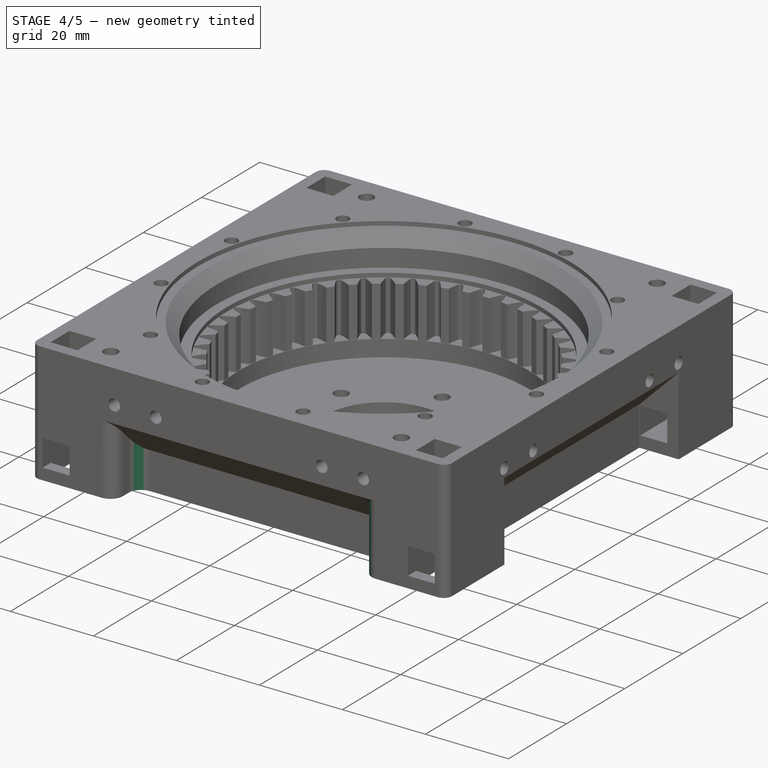
[diagram: stage 4 of 5 — iso view after this stage's code; geometry added in this stage tinted green]
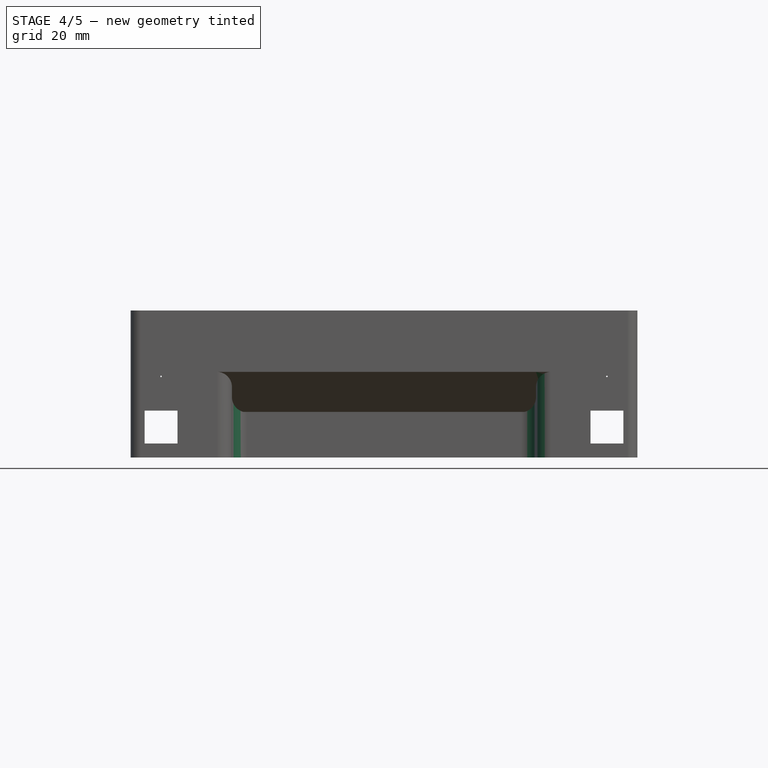
[diagram: stage 4 of 5 — front view after this stage's code; geometry added in this stage tinted green]
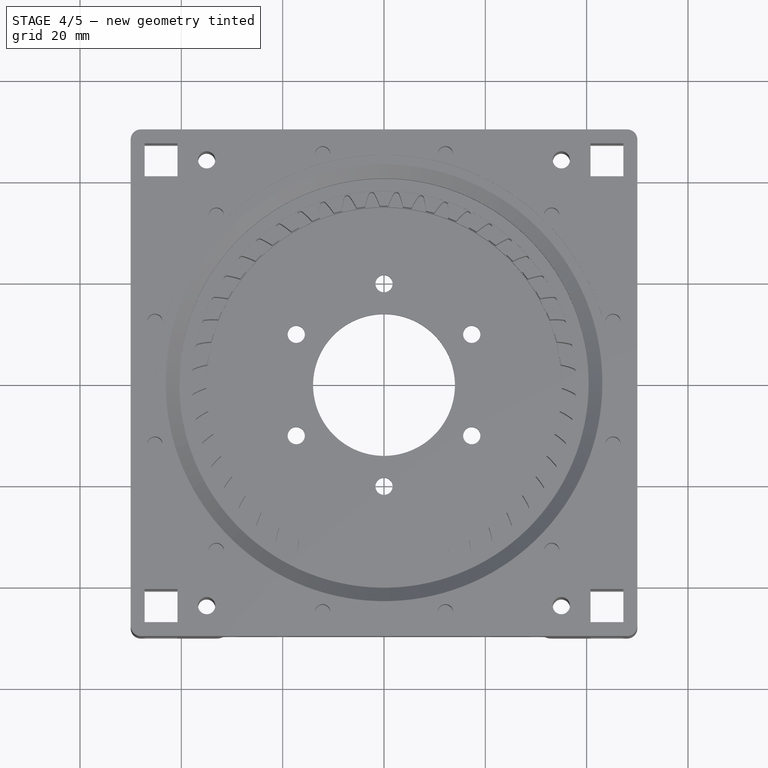
[diagram: stage 4 of 5 — top view after this stage's code; geometry added in this stage tinted green]
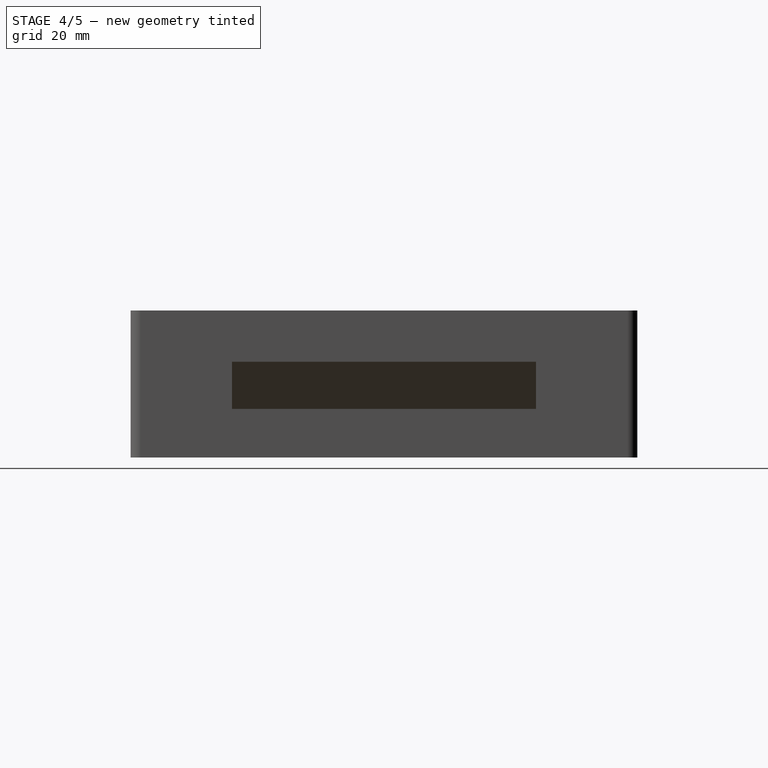
[diagram: stage 4 of 5 — right view after this stage's code; geometry added in this stage tinted green]
FEATURE [PartDesign::Fillet] Fillet005
  Base = -> Fillet004 [Edge85]
  Radius = 3
FEATURE [PartDesign::Fillet] Fillet006
  Base = -> Fillet005 [Edge64]
  Radius = 3
FEATURE [PartDesign::Fillet] Fillet007
  Base = -> Fillet006 [Edge66]
  Radius = 3
FEATURE [PartDesign::Fillet] Fillet008
  Base = -> Fillet007 [Edge156]
  Radius = 3
FEATURE [PartDesign::Fillet] Fillet009
  Base = -> Fillet008 [Edge89]
  Radius = 3
FEATURE [PartDesign::Fillet] Fillet010
  Base = -> Fillet009 [Edge77]
  Radius = 3
FEATURE [PartDesign::Fillet] Fillet011
  Base = -> Fillet010 [Edge63]
  Radius = 3
FEATURE [PartDesign::Fillet] Fillet012
  Base = -> Fillet011 [Edge109]
  Radius = 2
FEATURE [PartDesign::Fillet] Fillet013
  Base = -> Fillet012 [Edge70]
  Radius = 2
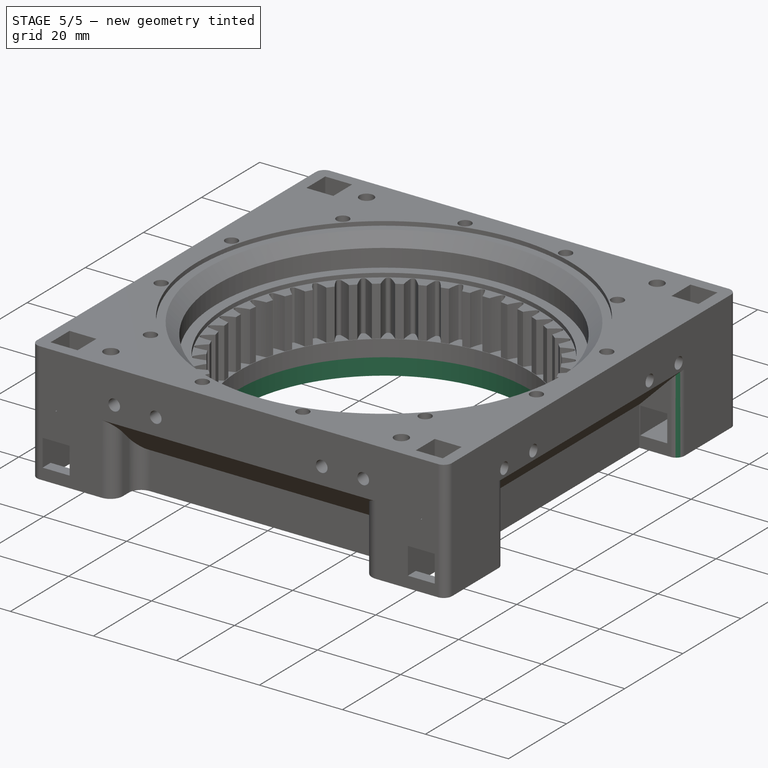
[diagram: stage 5 of 5 — iso view after this stage's code; geometry added in this stage tinted green]
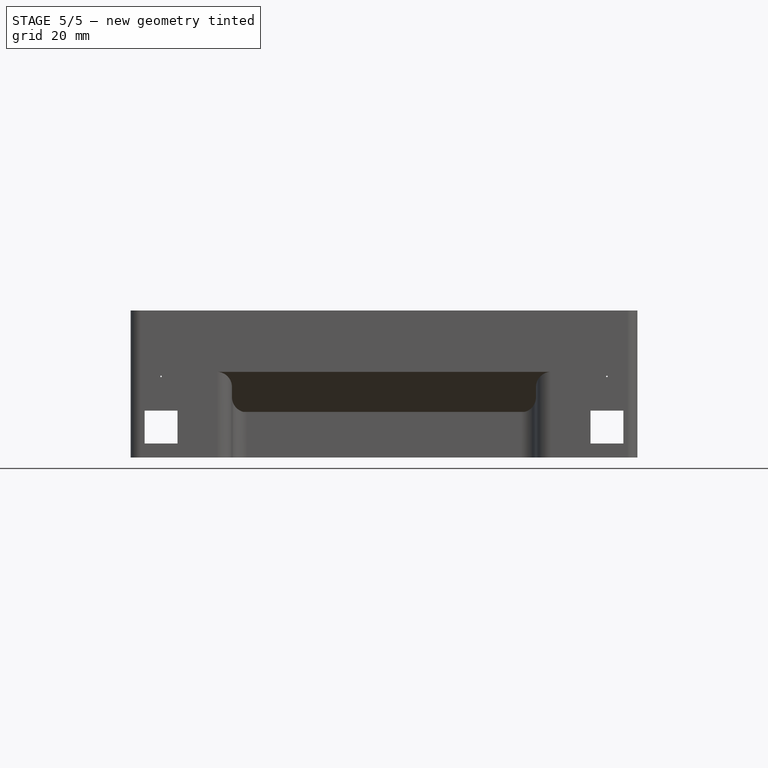
[diagram: stage 5 of 5 — front view after this stage's code; geometry added in this stage tinted green]
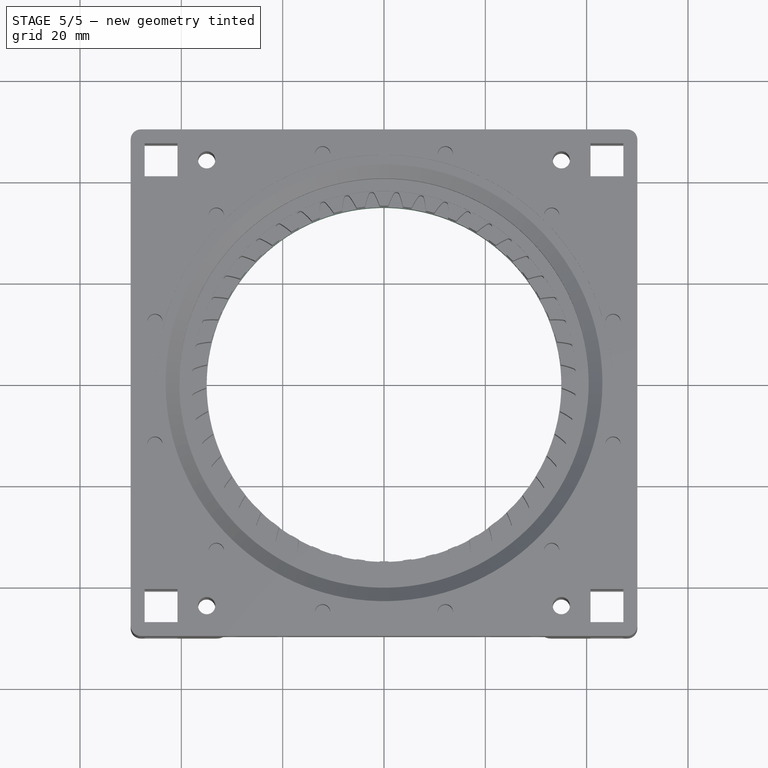
[diagram: stage 5 of 5 — top view after this stage's code; geometry added in this stage tinted green]
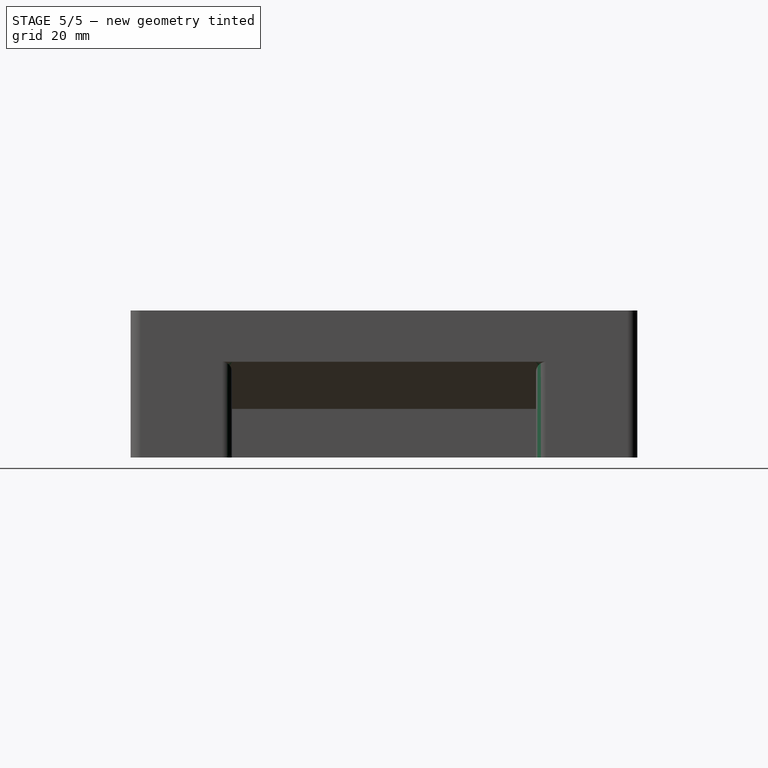
[diagram: stage 5 of 5 — right view after this stage's code; geometry added in this stage tinted green]
FEATURE [PartDesign::Fillet] Fillet014
  Base = -> Fillet013 [Edge192]
  Radius = 2
FEATURE [PartDesign::Fillet] Fillet015
  Base = -> Fillet014 [Edge72]
  Radius = 2
FEATURE [PartDesign::Chamfer] Chamfer004
  Base = -> Fillet015 [Edge329]
  Size = 1.5
FEATURE [PartDesign::Chamfer] Chamfer005
  Base = -> Chamfer004 [Edge71]
  Size = 1.5
FEATURE [PartDesign::Chamfer] Chamfer006
  Base = -> Chamfer005 [Edge5]
  Size = 1.5
FEATURE [PartDesign::Chamfer] Chamfer007
  Base = -> Chamfer006 [Edge6]
  Size = 1.5
FEATURE [PartDesign::Chamfer] Chamfer008
  Base = -> Chamfer007 [Edge7]
  Size = 1.5
FEATURE [PartDesign::Chamfer] Chamfer009
  Base = -> Chamfer008 [Edge8]
  Size = 1.5
FEATURE [Sketcher::SketchObject] Sketch033  label="Motor Mount Holes"
  Placement = pos=(0,0,0) rot=(1,0,0;3.14159rad)
  Support = -> Chamfer009 [Face17]
  sketch-geometry (9):
    g0: LineSegment [constr] StartX=-30 StartY=30 StartZ=0 EndX=30 EndY=30 EndZ=0
    g1: LineSegment [constr] StartX=30 StartY=30 StartZ=0 EndX=30 EndY=-30 EndZ=0
    g2: LineSegment [constr] StartX=30 StartY=-30 StartZ=0 EndX=-30 EndY=-30 EndZ=0
    g3: LineSegment [constr] StartX=-30 StartY=-30 StartZ=0 EndX=-30 EndY=30 EndZ=0
    g4: Circle CenterX=30 CenterY=-30 CenterZ=0 NormalX=0 NormalY=0 NormalZ=1 Radius=1.5
    g5: Circle CenterX=-30 CenterY=-30 CenterZ=0 NormalX=0 NormalY=0 NormalZ=1 Radius=1.5
    g6: Circle CenterX=-30 CenterY=30 CenterZ=0 NormalX=0 NormalY=0 NormalZ=1 Radius=1.5
    g7: Circle CenterX=30 CenterY=30 CenterZ=0 NormalX=0 NormalY=0 NormalZ=1 Radius=1.5
    g8: Circle CenterX=0 CenterY=0 CenterZ=0 NormalX=0 NormalY=0 NormalZ=1 Radius=35
  constraints (21):
    c: Coincident(g0,g1)
    c: Coincident(g1,g2)
    c: Coincident(g2,g3)
    c: Coincident(g3,g0)
    c: Horizontal(g0)
    c: Horizontal(g2)
    c: Vertical(g1)
    c: Vertical(g3)
    c: Symmetric(g2,g0,g-1)
    c: Equal(g2,g1)
    c: DistanceY(g1,g0) = 60
    c: Coincident(g4,g1)
    c: Coincident(g5,g2)
    c: Coincident(g6,g0)
    c: Coincident(g7,g0)
    c: Radius(g7) = 1.5
    c: Equal(g7,g4)
    c: Equal(g7,g5)
    c: Equal(g7,g6)
    c: Coincident(g8,g-1)
    c: Radius(g8) = 35
FEATURE [PartDesign::Pocket] Pocket024
  Length = 20
  Sketch = -> Sketch033
  Type = 0
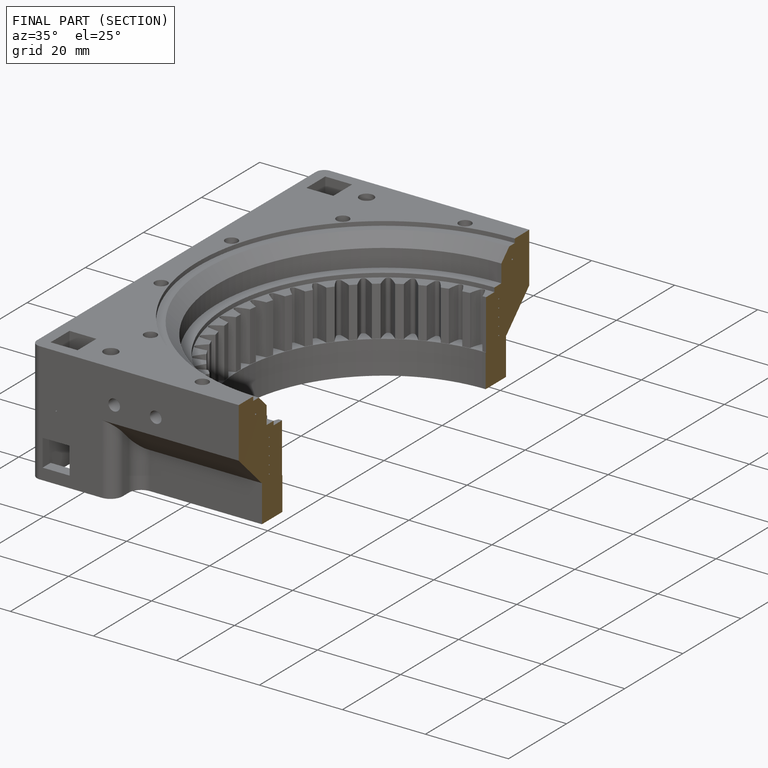
[diagram: finished part — half-section view (interior)]
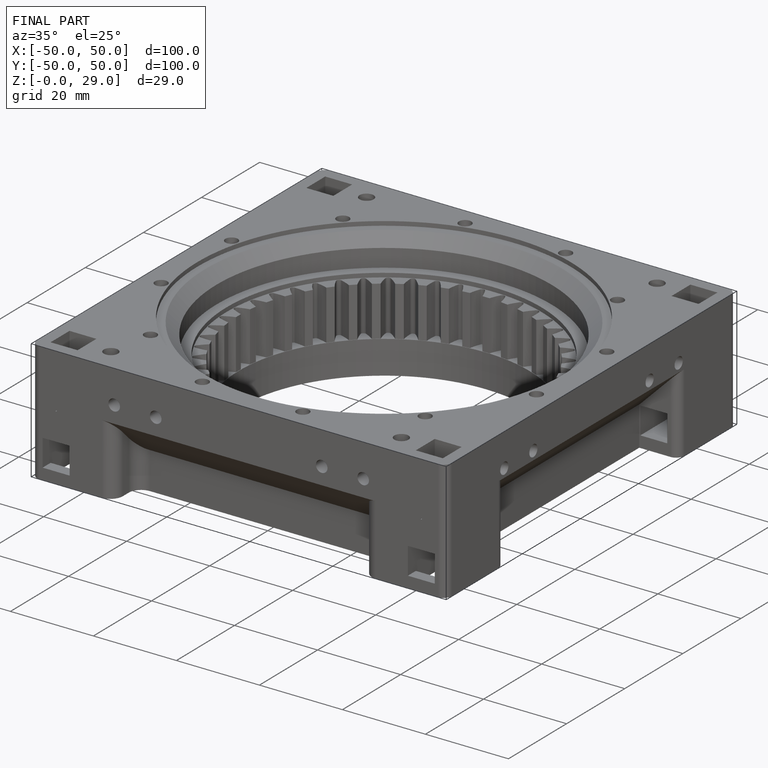
[diagram: finished part — iso view with bounding-box wireframe]
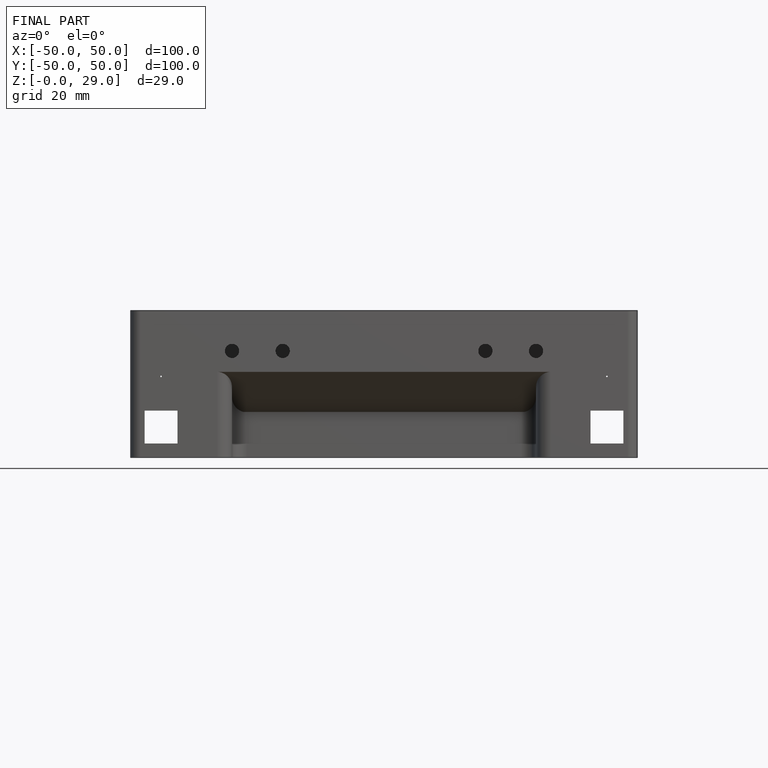
[diagram: finished part — front view with bounding-box wireframe]
